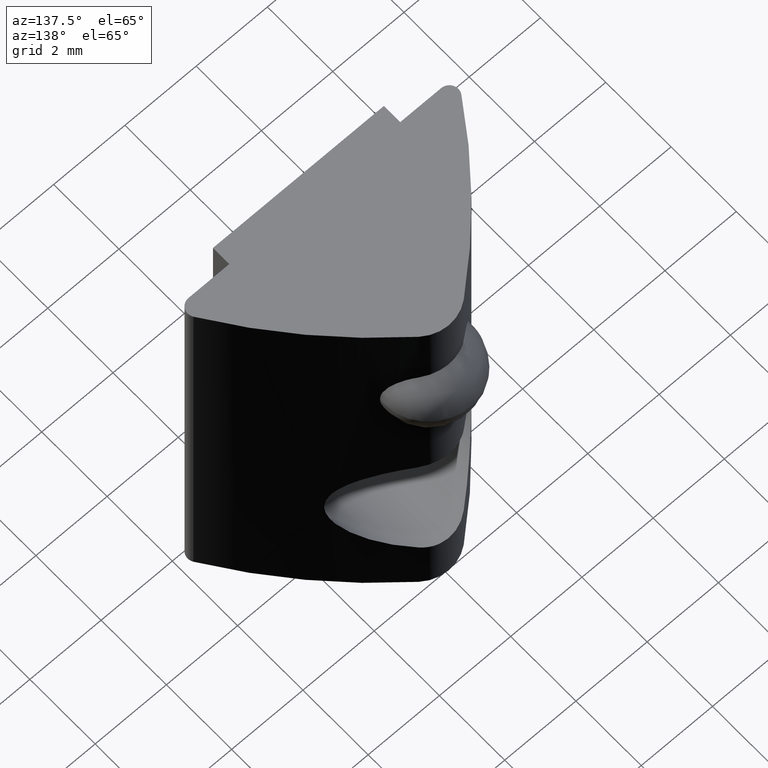
[diagram: clean part render]
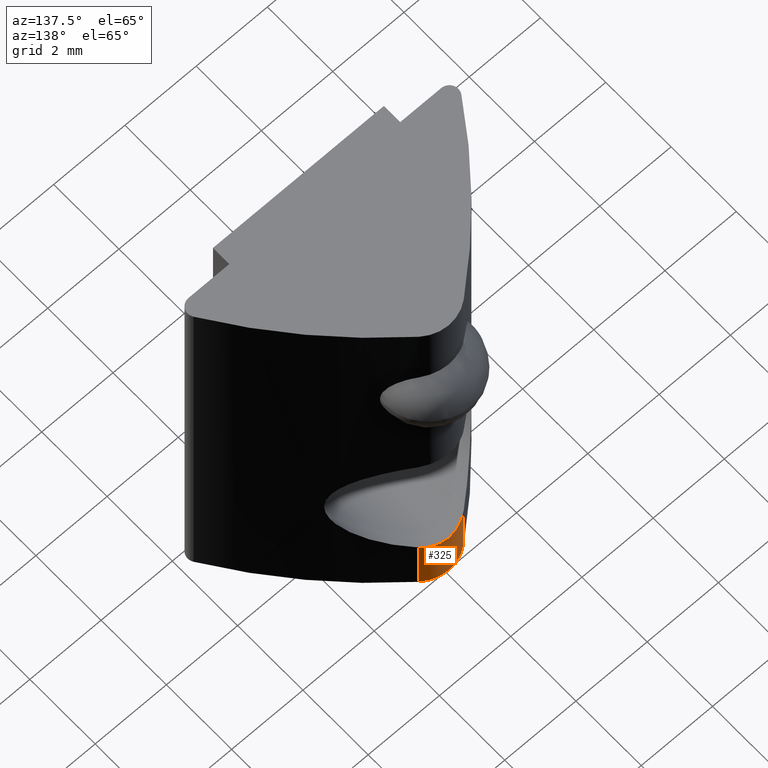
[diagram: same view with one face highlighted and labeled with its STEP entity id]
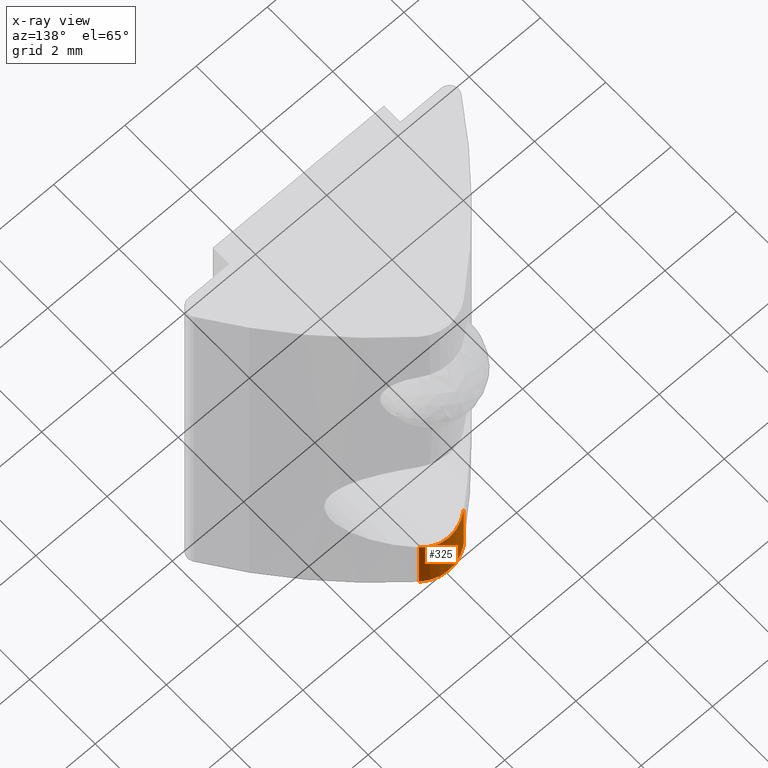
[diagram: x-ray of the same camera — body ghosted, the highlighted face saturated]
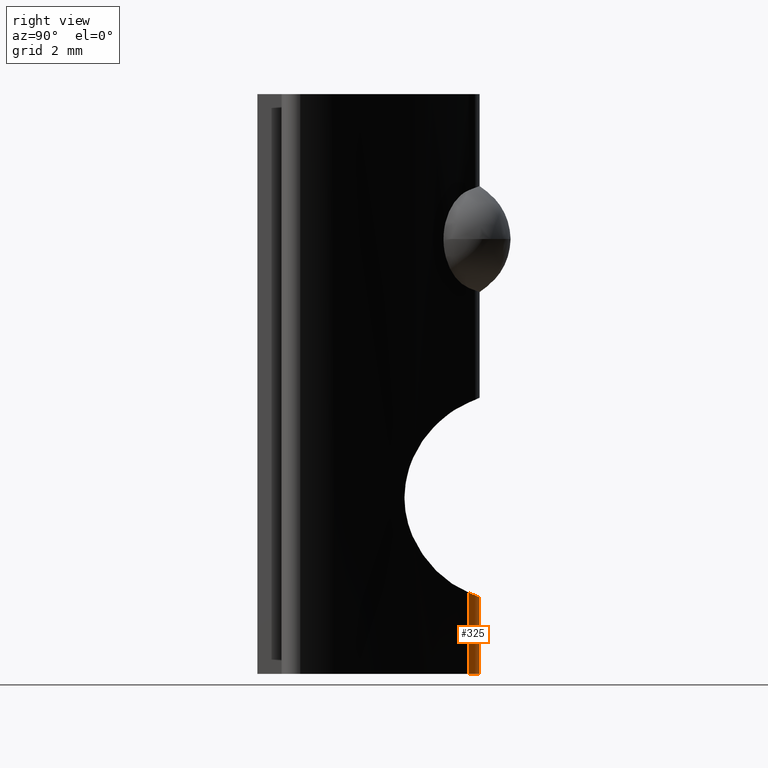
[diagram: same view with one face highlighted and labeled with its STEP entity id]
A machine part, auxiliary view. The second image highlights one B-rep face of the part: STEP entity #325.
The next image is the same camera in x-ray: the body ghosted, the highlighted face saturated — about 0% of this face is hidden behind the body in this view.
A second angle (right view) of the same face is appended — the face is thin or edge-on in the first view.
In plain terms, the highlighted cylindrical surface (partial cylindrical patch) has radius 1 mm, axis along (0, 0, 1).
Its self-contained STEP definition (entity closure, byte-faithful):
#22=LINE('',#567,#47);
#29=LINE('',#639,#54);
#47=VECTOR('',#395,10.);
#54=VECTOR('',#418,10.);
#76=CYLINDRICAL_SURFACE('',#371,1.);
#90=B_SPLINE_CURVE_WITH_KNOTS('',3,(#618,#619,#620,#621,#622,#623),
 .UNSPECIFIED.,.F.,.F.,(4,2,4),(0.4605956109399,0.498933489926439,0.526886079472134),
 .UNSPECIFIED.);
#91=B_SPLINE_CURVE_WITH_KNOTS('',3,(#624,#625,#626,#627,#628,#629),
 .UNSPECIFIED.,.F.,.F.,(4,2,4),(0.394305142407665,0.42225773195336,0.4605956109399),
 .UNSPECIFIED.);
#98=FACE_OUTER_BOUND('',#115,.T.);
#115=EDGE_LOOP('',(#262,#263,#264,#265,#266));
#133=CIRCLE('',#372,1.);
#145=VERTEX_POINT('',#546);
#146=VERTEX_POINT('',#566);
#154=VERTEX_POINT('',#606);
#155=VERTEX_POINT('',#617);
#159=VERTEX_POINT('',#637);
#179=EDGE_CURVE('',#146,#145,#22,.T.);
#191=EDGE_CURVE('',#155,#154,#90,.T.);
#192=EDGE_CURVE('',#145,#155,#91,.T.);
#197=EDGE_CURVE('',#159,#154,#29,.T.);
#199=EDGE_CURVE('',#146,#159,#133,.T.);
#262=ORIENTED_EDGE('',*,*,#192,.T.);
#263=ORIENTED_EDGE('',*,*,#191,.T.);
#264=ORIENTED_EDGE('',*,*,#197,.F.);
#265=ORIENTED_EDGE('',*,*,#199,.F.);
#266=ORIENTED_EDGE('',*,*,#179,.T.);
#325=ADVANCED_FACE('',(#98),#76,.T.);
#371=AXIS2_PLACEMENT_3D('',#642,#423,#424);
#372=AXIS2_PLACEMENT_3D('',#643,#425,#426);
#395=DIRECTION('',(0.,0.,1.));
#418=DIRECTION('',(0.,0.,1.));
#423=DIRECTION('center_axis',(0.,0.,1.));
#424=DIRECTION('ref_axis',(-0.63114343940598,-0.775666138808953,0.));
#425=DIRECTION('center_axis',(0.,0.,-1.));
#426=DIRECTION('ref_axis',(-0.63114343940598,-0.775666138808953,0.));
#546=CARTESIAN_POINT('',(-0.631143439405981,3.87566613880895,1.68171471608032));
#566=CARTESIAN_POINT('',(-0.631143439405981,3.87566613880895,0.));
#567=CARTESIAN_POINT('',(-0.631143439405981,3.87566613880895,0.));
#606=CARTESIAN_POINT('',(0.631143439405981,3.87566613880895,1.68171471608032));
#617=CARTESIAN_POINT('',(0.,4.1,1.583));
#618=CARTESIAN_POINT('Ctrl Pts',(1.04083408558608E-16,4.1,1.583));
#619=CARTESIAN_POINT('Ctrl Pts',(0.127792929955132,4.1,1.583));
#620=CARTESIAN_POINT('Ctrl Pts',(0.262709390187156,4.07402830726881,1.59594893189079));
#621=CARTESIAN_POINT('Ctrl Pts',(0.475243844961245,3.9851993132794,1.6363084937358));
#622=CARTESIAN_POINT('Ctrl Pts',(0.558781730004034,3.93454535999472,1.65851146473949));
#623=CARTESIAN_POINT('Ctrl Pts',(0.63114343940598,3.87566613880895,1.68171471608032));
#624=CARTESIAN_POINT('Ctrl Pts',(-0.63114343940598,3.87566613880895,1.68171471608032));
#625=CARTESIAN_POINT('Ctrl Pts',(-0.558781730004034,3.93454535999472,1.65851146473949));
#626=CARTESIAN_POINT('Ctrl Pts',(-0.475243844961245,3.9851993132794,1.6363084937358));
#627=CARTESIAN_POINT('Ctrl Pts',(-0.262709390187156,4.07402830726881,1.59594893189079));
#628=CARTESIAN_POINT('Ctrl Pts',(-0.127792929955132,4.1,1.583));
#629=CARTESIAN_POINT('Ctrl Pts',(1.73472347597681E-16,4.1,1.583));
#637=CARTESIAN_POINT('',(0.631143439405981,3.87566613880895,0.));
#639=CARTESIAN_POINT('',(0.631143439405981,3.87566613880895,0.));
#642=CARTESIAN_POINT('Origin',(0.,3.1,0.));
#643=CARTESIAN_POINT('Origin',(0.,3.1,0.));